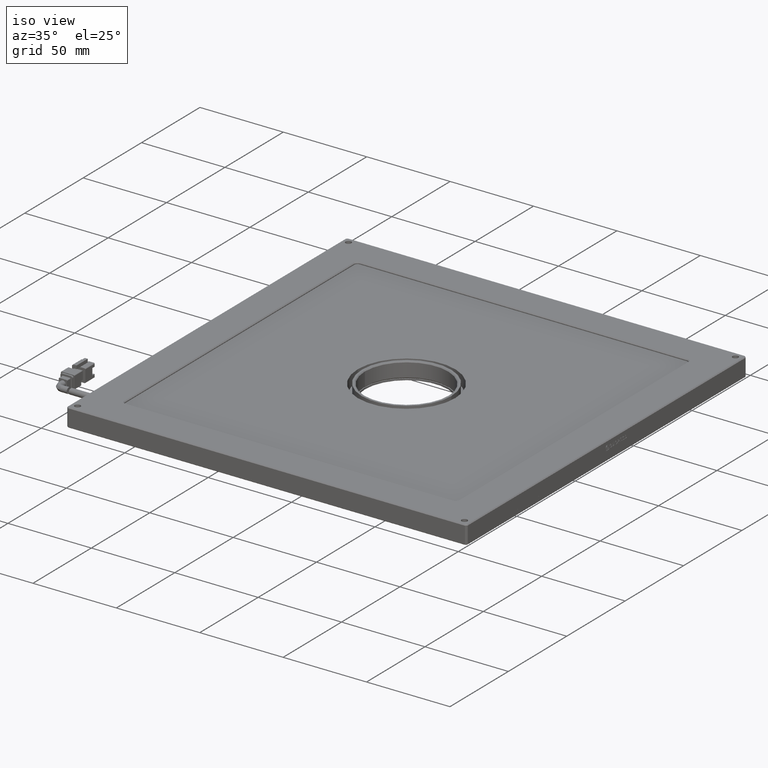
[diagram: clean part render]
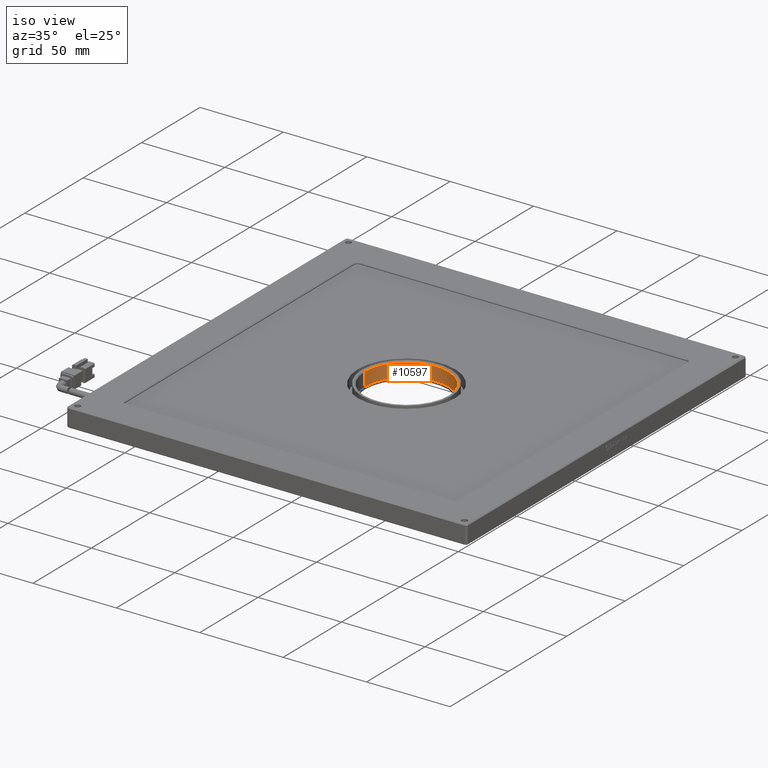
[diagram: same view with one face highlighted and labeled with its STEP entity id]
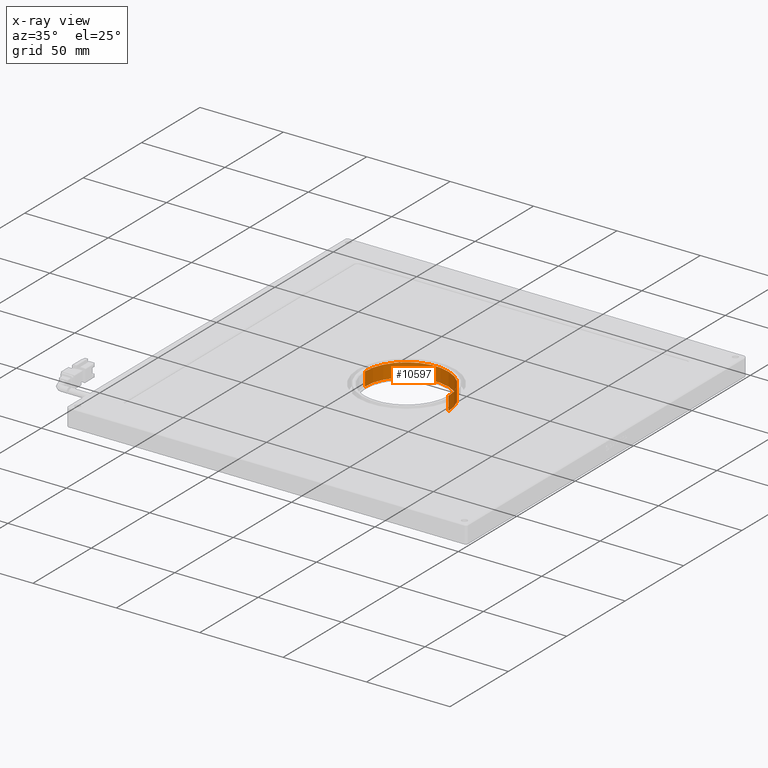
[diagram: x-ray of the same camera — body ghosted, the highlighted face saturated]
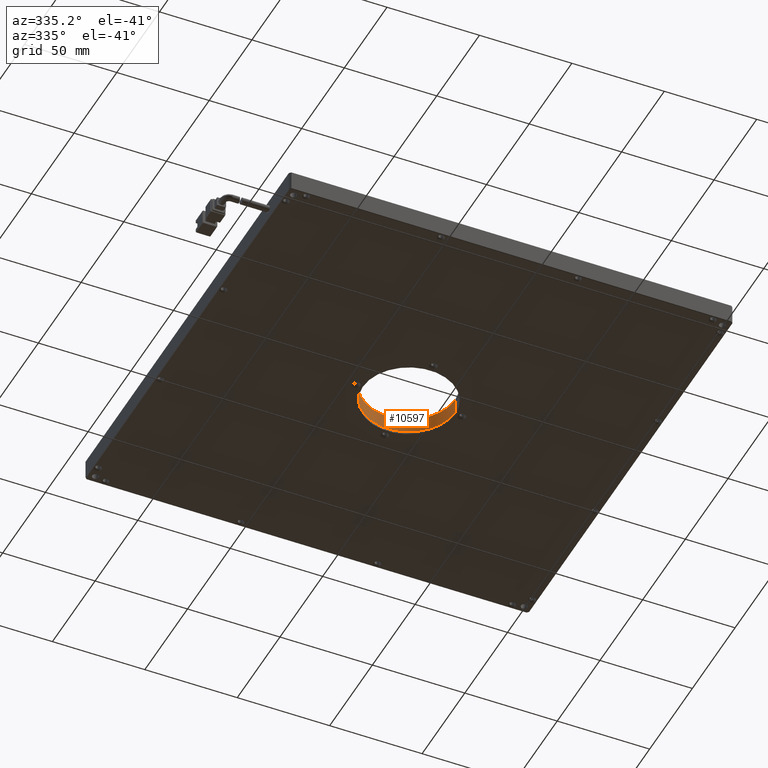
[diagram: same view with one face highlighted and labeled with its STEP entity id]
A machine part, iso view. The second image highlights one B-rep face of the part: STEP entity #10597.
The next image is the same camera in x-ray: the body ghosted, the highlighted face saturated — about 0% of this face is hidden behind the body in this view.
A second angle (auxiliary view) of the same face is appended — the face is thin or edge-on in the first view.
In plain terms, the highlighted cylindrical surface (partial cylindrical patch) has radius 25 mm, axis along (0, -0, 1).
Its self-contained STEP definition (entity closure, byte-faithful):
#673 = CYLINDRICAL_SURFACE ( 'NONE', #8755, 25.00000000000003900 ) ;
#703 = CIRCLE ( 'NONE', #15380, 25.00000000000002100 ) ;
#907 = LINE ( 'NONE', #7778, #12545 ) ;
#2799 = CARTESIAN_POINT ( 'NONE',  ( -14.05289445487915900, 18.54377205333210600, -3.000000000000000000 ) ) ;
#3811 = EDGE_CURVE ( 'NONE', #4559, #12171, #20595, .T. ) ;
#3934 = EDGE_CURVE ( 'NONE', #14055, #17788, #703, .T. ) ;
#4557 = VECTOR ( 'NONE', #20447, 1000.000000000000000 ) ;
#4559 = VERTEX_POINT ( 'NONE', #5644 ) ;
#5463 = AXIS2_PLACEMENT_3D ( 'NONE', #6327, #6201, #18183 ) ;
#5644 = CARTESIAN_POINT ( 'NONE',  ( -39.05289440854727400, 18.54529409011443900, 3.700000000000017500 ) ) ;
#5869 = ORIENTED_EDGE ( 'NONE', *, *, #9364, .F. ) ;
#6201 = DIRECTION ( 'NONE',  ( -0.0000000000000000000, 0.0000000000000000000, -1.000000000000000000 ) ) ;
#6327 = CARTESIAN_POINT ( 'NONE',  ( -14.05289445487915900, 18.54377205333210600, 3.700000000000017500 ) ) ;
#6547 = DIRECTION ( 'NONE',  ( 0.9999999981467232500, -6.088147129323923200E-005, 0.0000000000000000000 ) ) ;
#7691 = CARTESIAN_POINT ( 'NONE',  ( -39.05289440854725300, 18.54529409011443900, -4.499999999999988500 ) ) ;
#7778 = CARTESIAN_POINT ( 'NONE',  ( 10.94710549878896100, 18.54225001654977200, -3.000000000000000000 ) ) ;
#8755 = AXIS2_PLACEMENT_3D ( 'NONE', #2799, #14722, #13086 ) ;
#9093 = EDGE_CURVE ( 'NONE', #17788, #12171, #907, .T. ) ;
#9214 = CARTESIAN_POINT ( 'NONE',  ( 10.94710549878894300, 18.54225001654977200, -4.499999999999988500 ) ) ;
#9364 = EDGE_CURVE ( 'NONE', #14055, #4559, #13840, .T. ) ;
#10597 = ADVANCED_FACE ( 'NONE', ( #13648 ), #673, .F. ) ;
#12171 = VERTEX_POINT ( 'NONE', #15772 ) ;
#12545 = VECTOR ( 'NONE', #18129, 1000.000000000000000 ) ;
#13086 = DIRECTION ( 'NONE',  ( -0.9999999981467232500, 6.088147129323919200E-005, 0.0000000000000000000 ) ) ;
#13445 = CARTESIAN_POINT ( 'NONE',  ( -14.05289445487915900, 18.54377205333210600, -4.499999999999988500 ) ) ;
#13648 = FACE_OUTER_BOUND ( 'NONE', #14943, .T. ) ;
#13840 = LINE ( 'NONE', #20376, #4557 ) ;
#14055 = VERTEX_POINT ( 'NONE', #7691 ) ;
#14722 = DIRECTION ( 'NONE',  ( 0.0000000000000000000, -0.0000000000000000000, 1.000000000000000000 ) ) ;
#14860 = DIRECTION ( 'NONE',  ( 0.0000000000000000000, 0.0000000000000000000, -1.000000000000000000 ) ) ;
#14943 = EDGE_LOOP ( 'NONE', ( #21758, #21897, #16101, #5869 ) ) ;
#15380 = AXIS2_PLACEMENT_3D ( 'NONE', #13445, #14860, #6547 ) ;
#15772 = CARTESIAN_POINT ( 'NONE',  ( 10.94710549878895700, 18.54225001654977200, 3.700000000000017500 ) ) ;
#16101 = ORIENTED_EDGE ( 'NONE', *, *, #3811, .F. ) ;
#17788 = VERTEX_POINT ( 'NONE', #9214 ) ;
#18129 = DIRECTION ( 'NONE',  ( 0.0000000000000000000, -0.0000000000000000000, 1.000000000000000000 ) ) ;
#18183 = DIRECTION ( 'NONE',  ( -0.9999999981467232500, 6.088147129323919200E-005, 0.0000000000000000000 ) ) ;
#20376 = CARTESIAN_POINT ( 'NONE',  ( -39.05289440854727400, 18.54529409011443900, -3.000000000000000000 ) ) ;
#20447 = DIRECTION ( 'NONE',  ( 0.0000000000000000000, -0.0000000000000000000, 1.000000000000000000 ) ) ;
#20595 = CIRCLE ( 'NONE', #5463, 25.00000000000003900 ) ;
#21758 = ORIENTED_EDGE ( 'NONE', *, *, #3934, .T. ) ;
#21897 = ORIENTED_EDGE ( 'NONE', *, *, #9093, .T. ) ;